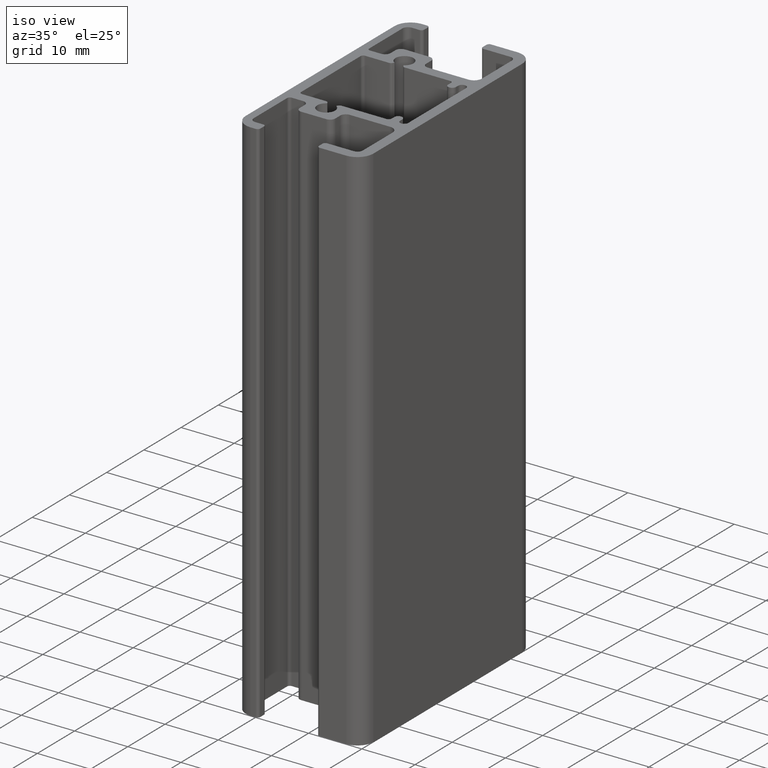
[diagram: clean part render]
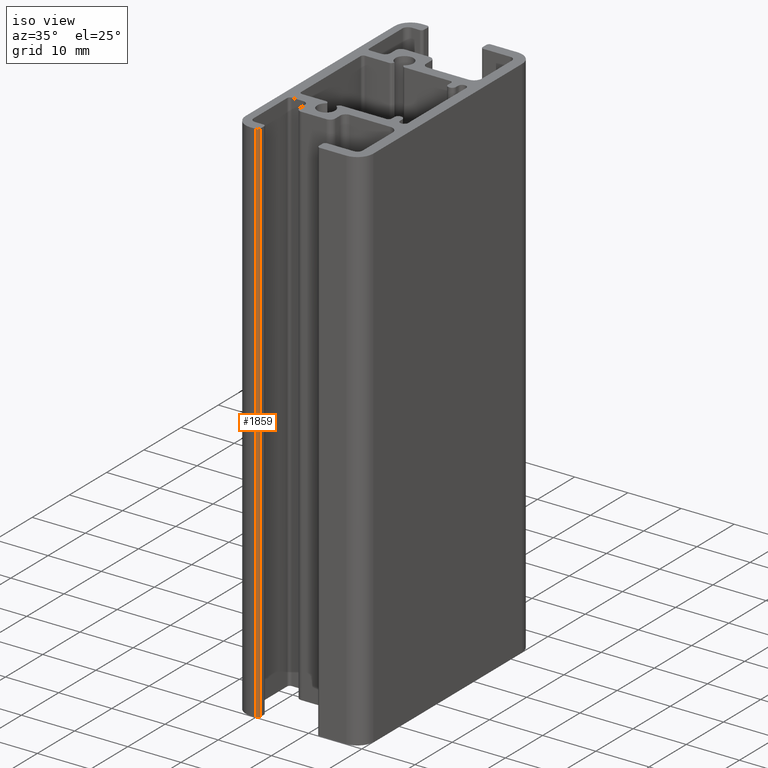
[diagram: same view with one face highlighted and labeled with its STEP entity id]
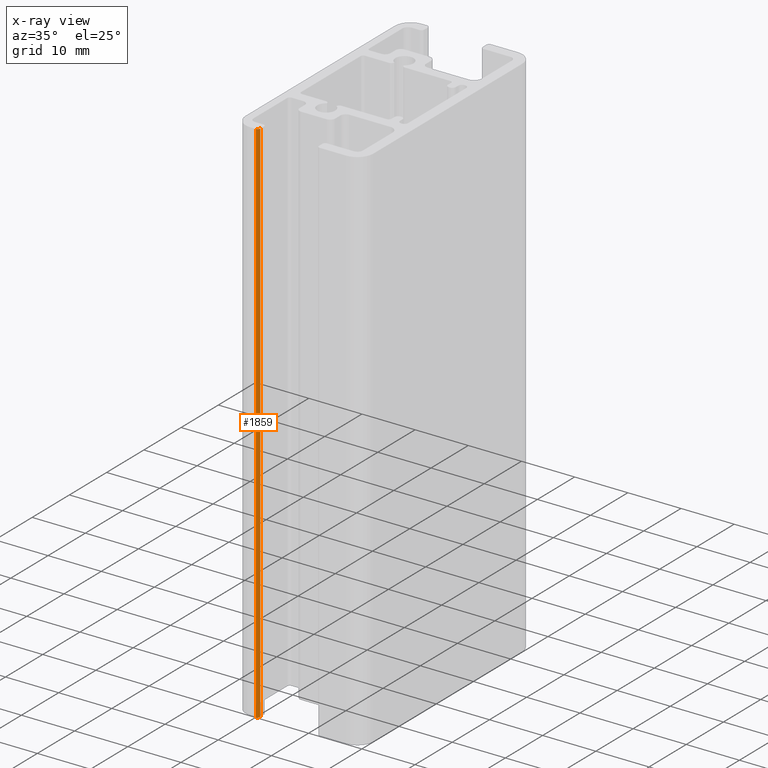
[diagram: x-ray of the same camera — body ghosted, the highlighted face saturated]
A machine part, iso view. The second image highlights one B-rep face of the part: STEP entity #1859.
The next image is the same camera in x-ray: the body ghosted, the highlighted face saturated — about 0% of this face is hidden behind the body in this view.
In plain terms, the highlighted cylindrical surface (edge-blend (fillet) strip) has radius 0.5 mm, axis along (0, 0, 1).
Its self-contained STEP definition (entity closure, byte-faithful):
#151=FACE_OUTER_BOUND('',#245,.T.);
#245=EDGE_LOOP('',(#1519,#1520,#1521,#1522));
#427=LINE('',#3132,#611);
#428=LINE('',#3138,#612);
#611=VECTOR('',#2573,100.);
#612=VECTOR('',#2580,100.);
#709=CIRCLE('',#2042,0.50000000000001);
#710=CIRCLE('',#2043,0.50000000000001);
#887=VERTEX_POINT('',#3128);
#888=VERTEX_POINT('',#3130);
#889=VERTEX_POINT('',#3134);
#890=VERTEX_POINT('',#3136);
#1157=EDGE_CURVE('',#887,#888,#427,.T.);
#1158=EDGE_CURVE('',#887,#889,#709,.T.);
#1159=EDGE_CURVE('',#890,#888,#710,.T.);
#1160=EDGE_CURVE('',#889,#890,#428,.T.);
#1519=ORIENTED_EDGE('',*,*,#1158,.F.);
#1520=ORIENTED_EDGE('',*,*,#1157,.T.);
#1521=ORIENTED_EDGE('',*,*,#1159,.F.);
#1522=ORIENTED_EDGE('',*,*,#1160,.F.);
#1770=CYLINDRICAL_SURFACE('',#2041,0.50000000000001);
#1859=ADVANCED_FACE('',(#151),#1770,.T.);
#2041=AXIS2_PLACEMENT_3D('',#3133,#2574,#2575);
#2042=AXIS2_PLACEMENT_3D('',#3135,#2576,#2577);
#2043=AXIS2_PLACEMENT_3D('',#3137,#2578,#2579);
#2573=DIRECTION('',(0.,0.,1.));
#2574=DIRECTION('center_axis',(0.,0.,1.));
#2575=DIRECTION('ref_axis',(-0.000667255135668996,0.999999777385267,0.));
#2576=DIRECTION('center_axis',(0.,0.,-1.));
#2577=DIRECTION('ref_axis',(-0.000667255135668996,0.999999777385267,0.));
#2578=DIRECTION('center_axis',(0.,0.,1.));
#2579=DIRECTION('ref_axis',(-0.000667255135668996,0.999999777385267,0.));
#2580=DIRECTION('',(0.,0.,1.));
#3128=CARTESIAN_POINT('',(-7.40028306655482,-22.3991897837897,0.));
#3130=CARTESIAN_POINT('',(-7.40028306655482,-22.3991897837897,100.));
#3132=CARTESIAN_POINT('',(-7.40028306655482,-22.3991897837897,0.));
#3133=CARTESIAN_POINT('Origin',(-7.90028295524747,-22.3995234113575,0.));
#3134=CARTESIAN_POINT('',(-7.89994932767963,-22.8995233000502,0.));
#3135=CARTESIAN_POINT('Origin',(-7.90028295524747,-22.3995234113575,0.));
#3136=CARTESIAN_POINT('',(-7.89994932767963,-22.8995233000502,100.));
#3137=CARTESIAN_POINT('Origin',(-7.90028295524747,-22.3995234113575,100.));
#3138=CARTESIAN_POINT('',(-7.89994932767963,-22.8995233000502,0.));